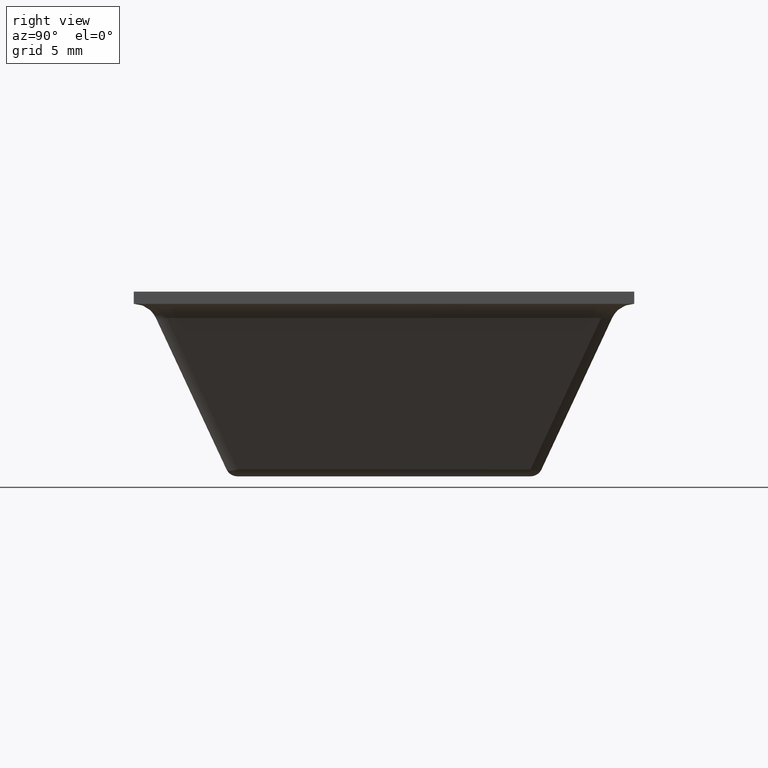
[diagram: clean part render]
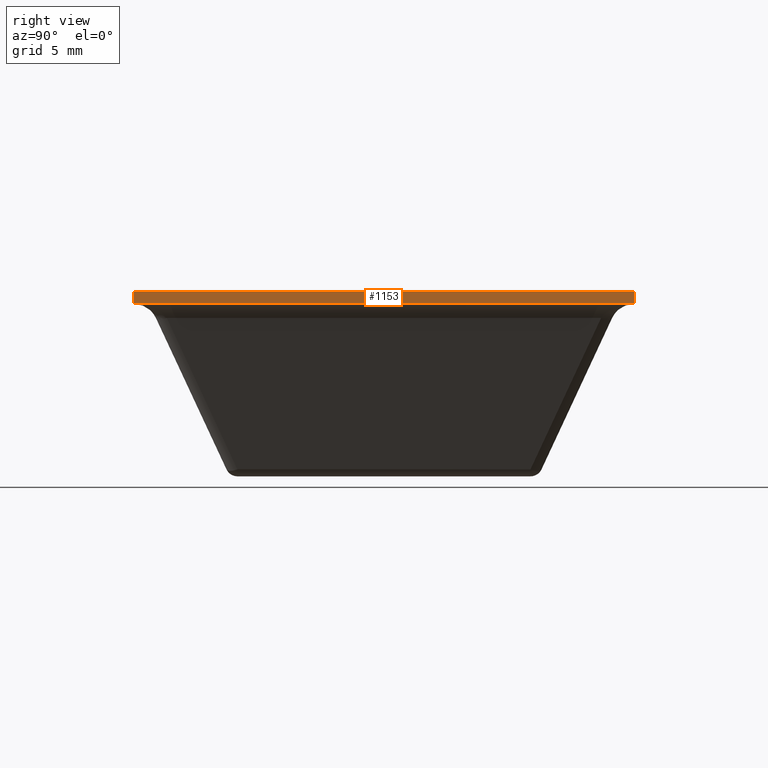
[diagram: same view with one face highlighted and labeled with its STEP entity id]
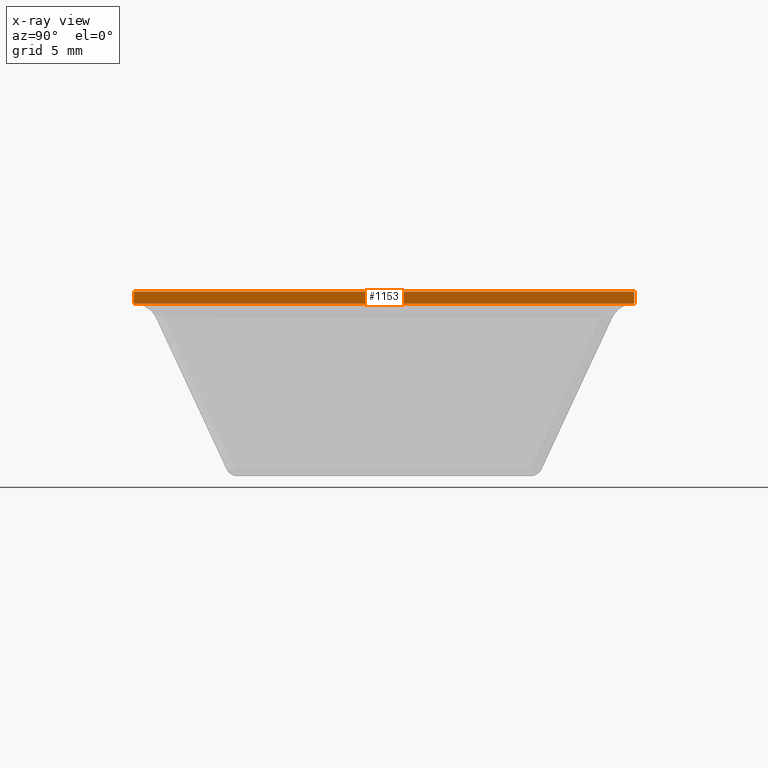
[diagram: x-ray of the same camera — body ghosted, the highlighted face saturated]
A machine part, right view. The second image highlights one B-rep face of the part: STEP entity #1153.
The next image is the same camera in x-ray: the body ghosted, the highlighted face saturated — about 0% of this face is hidden behind the body in this view.
In plain terms, the highlighted face is a freeform B-spline surface patch.
Its self-contained STEP definition (entity closure, byte-faithful):
#1017=CARTESIAN_POINT('',(10.300000000000001,-10.300000000000001,7.100000000000001));
#1018=VERTEX_POINT('',#1017);
#1019=CARTESIAN_POINT('',(10.300000000000001,10.300000000000001,7.100000000000001));
#1020=VERTEX_POINT('',#1019);
#1021=CARTESIAN_POINT('',(10.300000000000001,-10.300000000000001,7.100000000000001));
#1022=CARTESIAN_POINT('',(10.300000000000001,10.300000000000001,7.100000000000001));
#1023=QUASI_UNIFORM_CURVE('',1,(#1021,#1022),.UNSPECIFIED.,.F.,.U.);
#1024=EDGE_CURVE('',#1018,#1020,#1023,.T.);
#1059=CARTESIAN_POINT('',(10.300000000000001,10.300000000000001,7.600000000000000));
#1060=VERTEX_POINT('',#1059);
#1061=CARTESIAN_POINT('',(10.300000000000001,-10.300000000000001,7.600000000000000));
#1062=VERTEX_POINT('',#1061);
#1063=CARTESIAN_POINT('',(10.300000000000001,10.300000000000001,7.600000000000000));
#1064=CARTESIAN_POINT('',(10.300000000000001,-10.300000000000001,7.600000000000000));
#1065=QUASI_UNIFORM_CURVE('',1,(#1063,#1064),.UNSPECIFIED.,.F.,.U.);
#1066=EDGE_CURVE('',#1060,#1062,#1065,.T.);
#1115=CARTESIAN_POINT('',(10.300000000000001,10.300000000000001,7.600000000000000));
#1116=CARTESIAN_POINT('',(10.300000000000001,10.300000000000001,7.100000000000001));
#1117=QUASI_UNIFORM_CURVE('',1,(#1115,#1116),.UNSPECIFIED.,.F.,.U.);
#1118=EDGE_CURVE('',#1060,#1020,#1117,.T.);
#1138=CARTESIAN_POINT('',(10.300000000000001,-11.328970153451269,7.624974904037117));
#1139=CARTESIAN_POINT('',(10.300000000000001,-11.328970153451269,7.075024917148948));
#1140=CARTESIAN_POINT('',(10.300000000000001,11.328970521807969,7.624974904037117));
#1141=CARTESIAN_POINT('',(10.300000000000001,11.328970521807969,7.075024917148948));
#1142=B_SPLINE_SURFACE_WITH_KNOTS('',1,1,((#1138,#1140),(#1139,#1141)),.UNSPECIFIED.,.F.,.F.,.U.,(2,2),(2,2),(0.041708493271470,0.958291804751754),(0.0,22.657940675259240),.UNSPECIFIED.);
#1143=CARTESIAN_POINT('',(10.300000000000001,-10.300000000000001,7.600000000000000));
#1144=CARTESIAN_POINT('',(10.300000000000001,-10.300000000000001,7.100000000000001));
#1145=QUASI_UNIFORM_CURVE('',1,(#1143,#1144),.UNSPECIFIED.,.F.,.U.);
#1146=EDGE_CURVE('',#1062,#1018,#1145,.T.);
#1147=ORIENTED_EDGE('',*,*,#1146,.T.);
#1148=ORIENTED_EDGE('',*,*,#1024,.T.);
#1149=ORIENTED_EDGE('',*,*,#1118,.F.);
#1150=ORIENTED_EDGE('',*,*,#1066,.T.);
#1151=EDGE_LOOP('',(#1147,#1148,#1149,#1150));
#1152=FACE_OUTER_BOUND('',#1151,.T.);
#1153=ADVANCED_FACE('',(#1152),#1142,.T.);